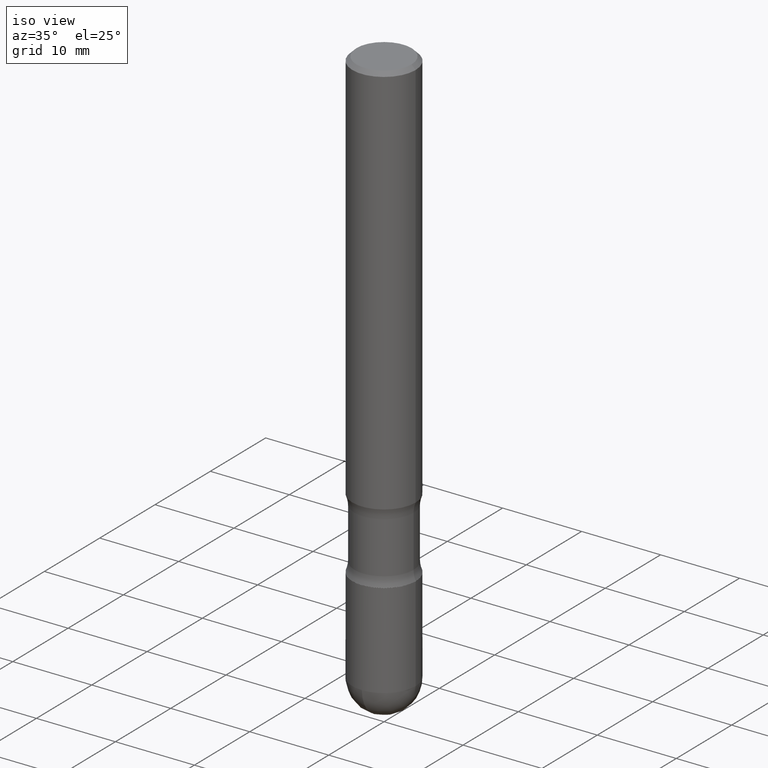
[diagram: clean part render]
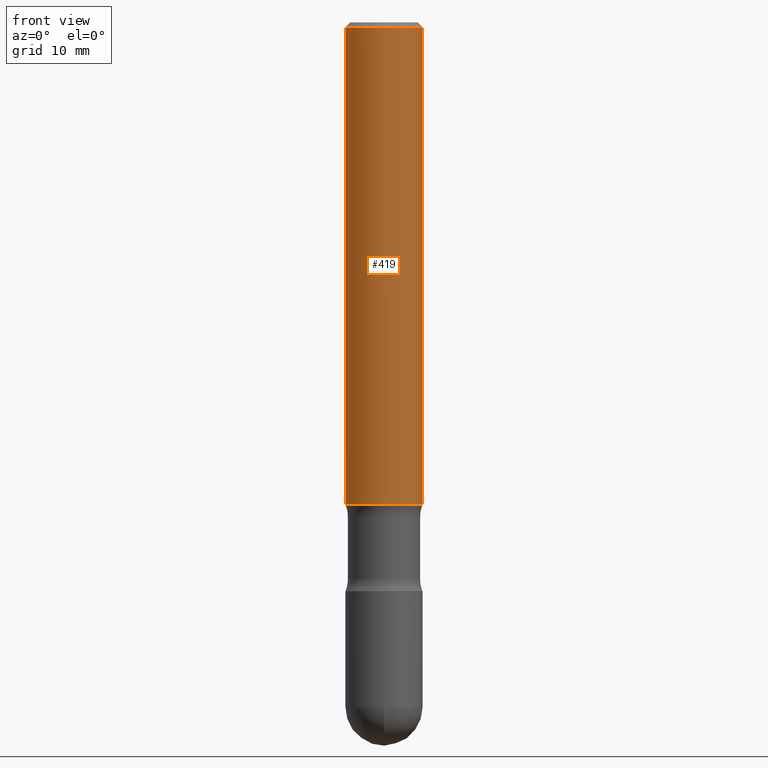
[diagram: tour spotlight — one face highlighted and labeled with its STEP entity id]
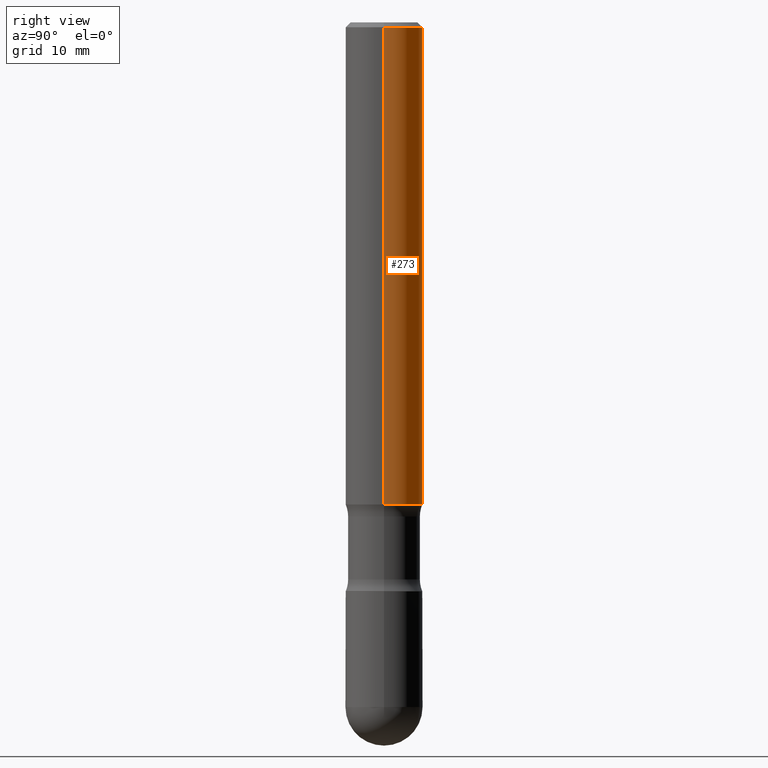
[diagram: tour spotlight — one face highlighted and labeled with its STEP entity id]
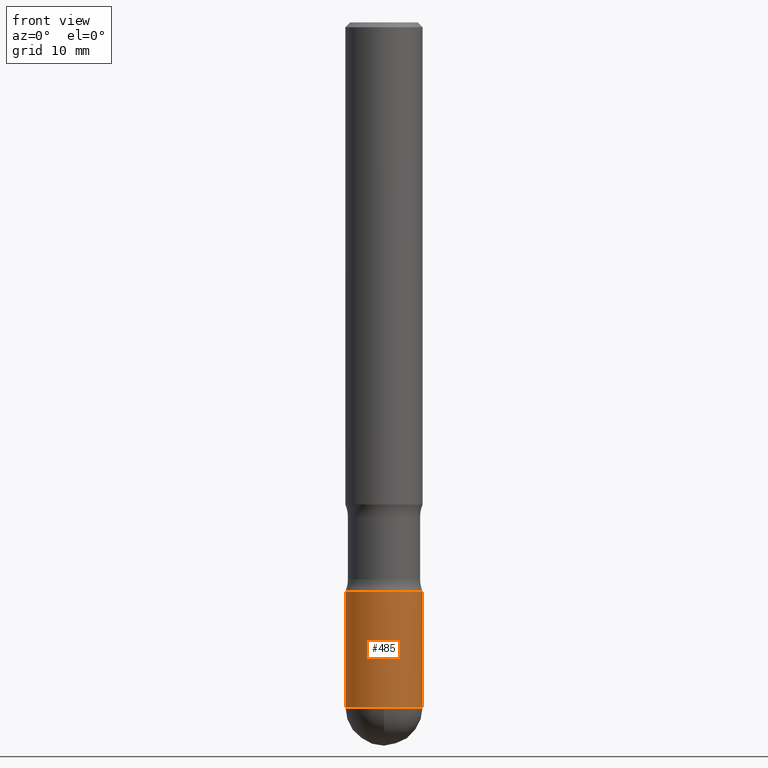
[diagram: tour spotlight — one face highlighted and labeled with its STEP entity id]
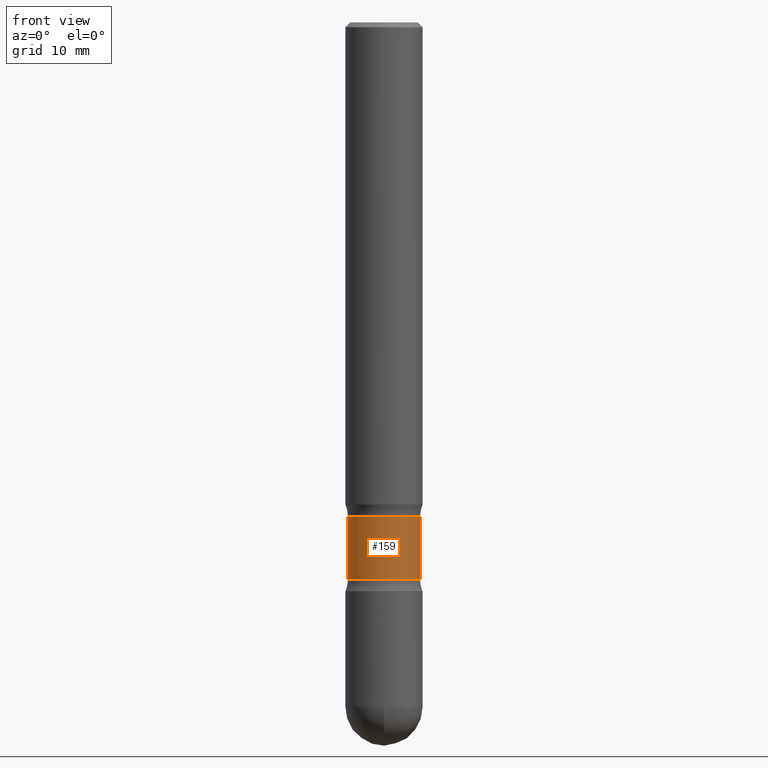
[diagram: tour spotlight — one face highlighted and labeled with its STEP entity id]
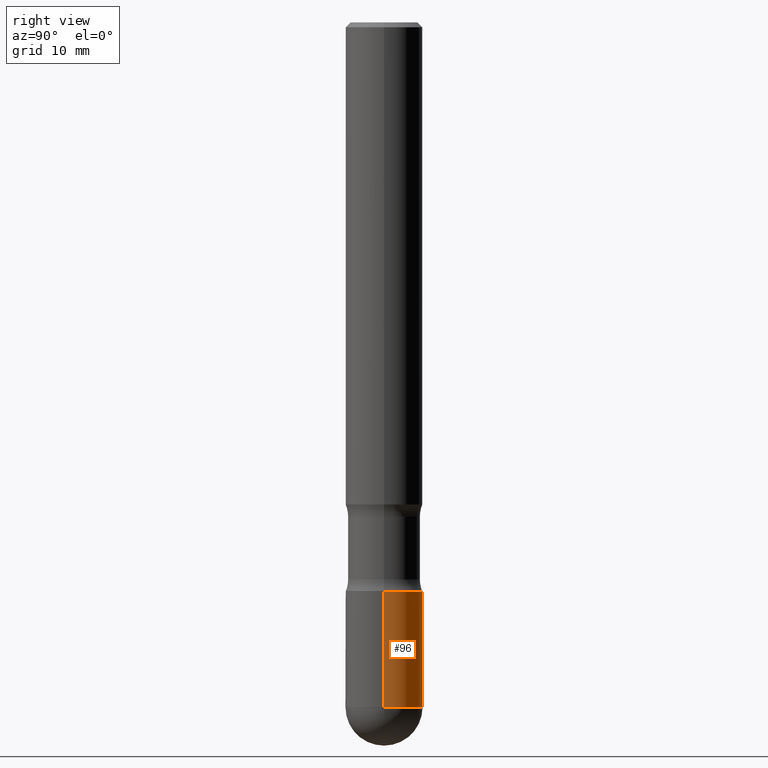
[diagram: tour spotlight — one face highlighted and labeled with its STEP entity id]
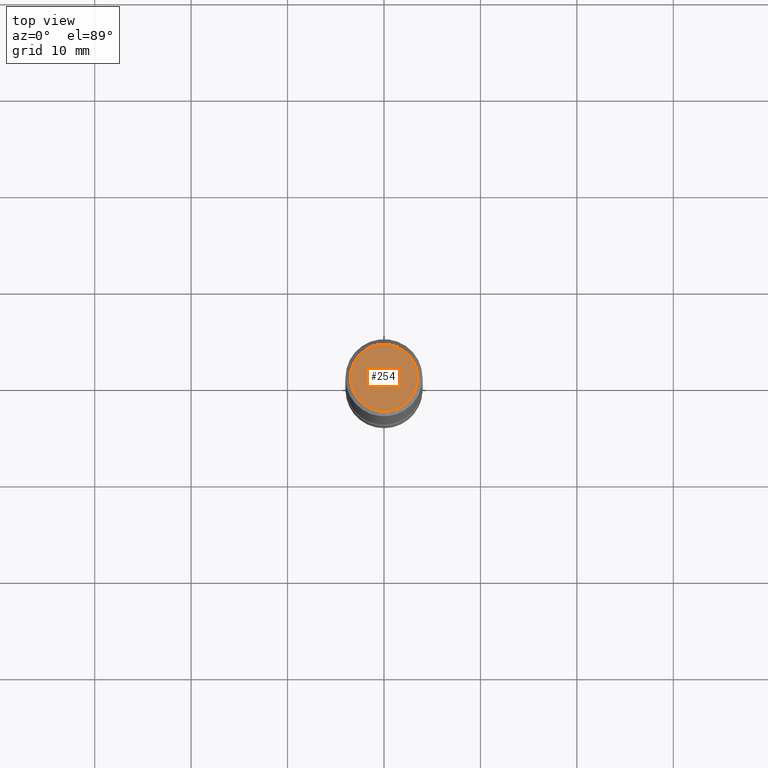
[diagram: tour spotlight — one face highlighted and labeled with its STEP entity id]
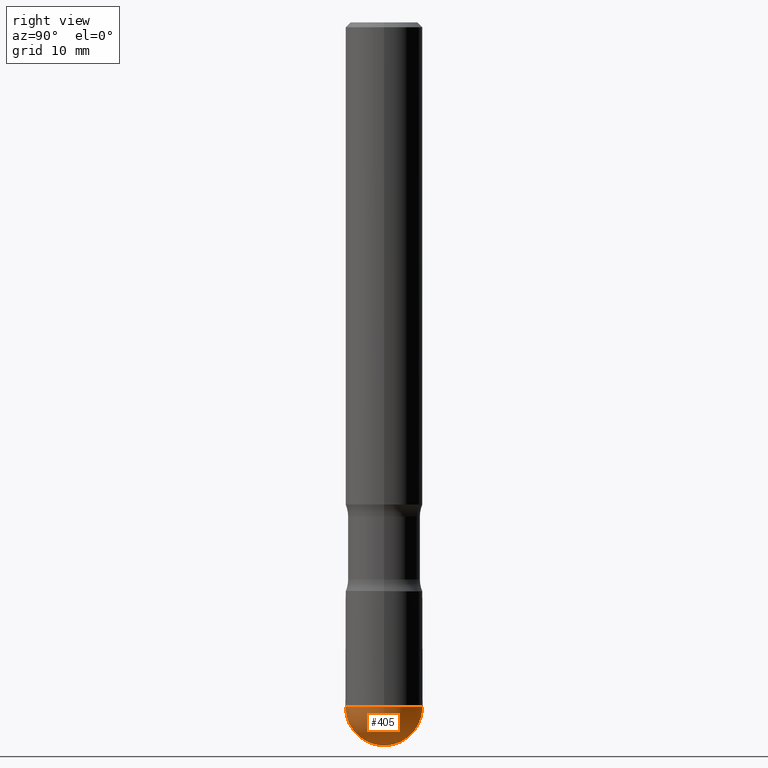
[diagram: tour spotlight — one face highlighted and labeled with its STEP entity id]
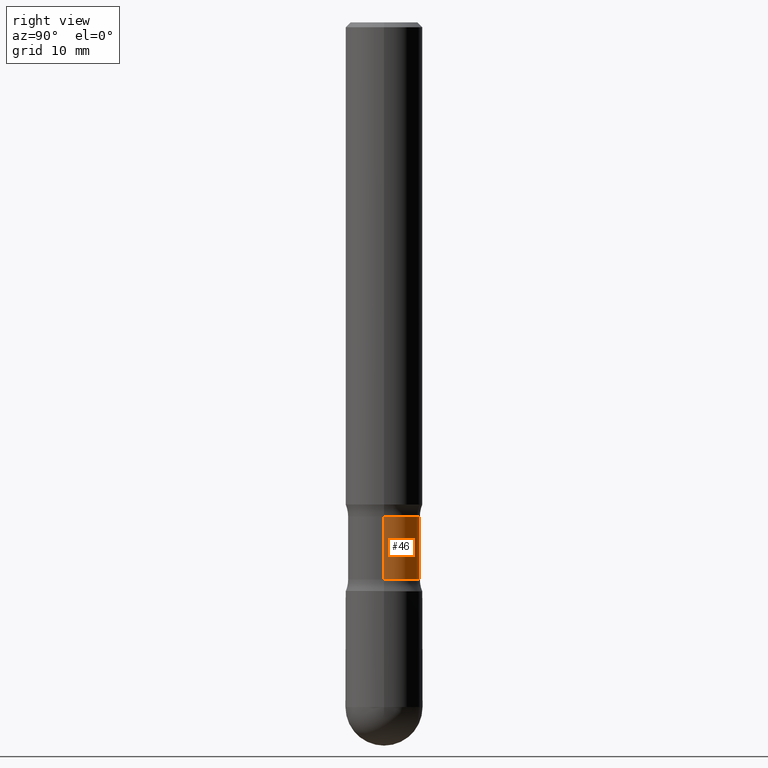
[diagram: tour spotlight — one face highlighted and labeled with its STEP entity id]
A machine part: a face-by-face anatomy tour. The part has 19 B-rep faces; the first image is the clean iso view, then the 8 largest visible faces are spotlighted one at a time (largest first), each with its STEP entity span.

Face 1 — front view, entity #419. In plain terms, the highlighted cylindrical surface (partial cylindrical patch) has radius 4.0005 mm, axis along (0, -0, -1).
Definition (entity closure, byte-faithful):
#29 = CYLINDRICAL_SURFACE ( 'NONE', #199, 0.1574999999999998623 ) ;
#30 = CARTESIAN_POINT ( 'NONE',  ( -0.1574999999999998623, -7.010545380263155655E-15, -2.322899999999999743 ) ) ;
#35 = ORIENTED_EDGE ( 'NONE', *, *, #527, .F. ) ;
#66 = EDGE_CURVE ( 'NONE', #160, #397, #324, .T. ) ;
#86 = CARTESIAN_POINT ( 'NONE',  ( 4.813905344975444077E-29, -6.872981015512735652E-15, -1.968500000000001249 ) ) ;
#91 = DIRECTION ( 'NONE',  ( -1.000000000000000000, 6.982962677686266711E-15, 0.000000000000000000 ) ) ;
#93 = EDGE_CURVE ( 'NONE', #435, #145, #252, .T. ) ;
#145 = VERTEX_POINT ( 'NONE', #450 ) ;
#160 = VERTEX_POINT ( 'NONE', #491 ) ;
#167 = CARTESIAN_POINT ( 'NONE',  ( -0.1574999999999999456, -5.773164393777148960E-15, -1.968500000000001249 ) ) ;
#199 = AXIS2_PLACEMENT_3D ( 'NONE', #432, #349, #477 ) ;
#223 = VECTOR ( 'NONE', #307, 39.37007874015748143 ) ;
#225 = DIRECTION ( 'NONE',  ( 2.445468806185136597E-29, -3.491481338843145583E-15, -1.000000000000000000 ) ) ;
#248 = FACE_OUTER_BOUND ( 'NONE', #304, .T. ) ;
#252 = CIRCLE ( 'NONE', #475, 0.1574999999999997513 ) ;
#304 = EDGE_LOOP ( 'NONE', ( #35, #359, #497, #401 ) ) ;
#307 = DIRECTION ( 'NONE',  ( 2.445468806185136877E-29, -3.491481338843145188E-15, -1.000000000000000000 ) ) ;
#324 = CIRCLE ( 'NONE', #541, 0.1574999999999999456 ) ;
#349 = DIRECTION ( 'NONE',  ( 2.445468806185136597E-29, -3.491481338843145583E-15, -1.000000000000000000 ) ) ;
#351 = VECTOR ( 'NONE', #514, 39.37007874015748143 ) ;
#356 = LINE ( 'NONE', #448, #223 ) ;
#358 = DIRECTION ( 'NONE',  ( 2.445468806185136597E-29, -3.491481338843145583E-15, -1.000000000000000000 ) ) ;
#359 = ORIENTED_EDGE ( 'NONE', *, *, #93, .T. ) ;
#387 = EDGE_CURVE ( 'NONE', #145, #397, #427, .T. ) ;
#397 = VERTEX_POINT ( 'NONE', #167 ) ;
#401 = ORIENTED_EDGE ( 'NONE', *, *, #66, .F. ) ;
#419 = ADVANCED_FACE ( 'NONE', ( #248 ), #29, .T. ) ;
#427 = LINE ( 'NONE', #30, #351 ) ;
#432 = CARTESIAN_POINT ( 'NONE',  ( 5.680579489887452821E-29, -8.110362001998742346E-15, -2.322899999999999743 ) ) ;
#435 = VERTEX_POINT ( 'NONE', #554 ) ;
#448 = CARTESIAN_POINT ( 'NONE',  ( 0.1574999999999998623, -9.190890436647758125E-15, -2.322899999999999743 ) ) ;
#450 = CARTESIAN_POINT ( 'NONE',  ( -0.1574999999999997513, 1.029986994958722210E-15, -0.02000000000000005940 ) ) ;
#475 = AXIS2_PLACEMENT_3D ( 'NONE', #487, #358, #91 ) ;
#477 = DIRECTION ( 'NONE',  ( -1.000000000000000000, 6.982962677686268288E-15, 0.000000000000000000 ) ) ;
#487 = CARTESIAN_POINT ( 'NONE',  ( 4.890937612370288047E-31, -6.982962677686311331E-17, -0.02000000000000005940 ) ) ;
#491 = CARTESIAN_POINT ( 'NONE',  ( 0.1574999999999999456, -4.551933755793814071E-15, -1.968500000000001249 ) ) ;
#493 = DIRECTION ( 'NONE',  ( -1.000000000000000000, 6.982962677686270655E-15, 0.000000000000000000 ) ) ;
#497 = ORIENTED_EDGE ( 'NONE', *, *, #387, .T. ) ;
#514 = DIRECTION ( 'NONE',  ( 2.445468806185136877E-29, -3.491481338843145188E-15, -1.000000000000000000 ) ) ;
#527 = EDGE_CURVE ( 'NONE', #435, #160, #356, .T. ) ;
#541 = AXIS2_PLACEMENT_3D ( 'NONE', #86, #225, #493 ) ;
#554 = CARTESIAN_POINT ( 'NONE',  ( 0.1574999999999997513, -1.150358061425877697E-15, -0.02000000000000005940 ) ) ;

Face 2 — right view, entity #273. In plain terms, the highlighted cylindrical surface (partial cylindrical patch) has radius 4.0005 mm, axis along (0, -0, -1).
Definition (entity closure, byte-faithful):
#6 = AXIS2_PLACEMENT_3D ( 'NONE', #65, #548, #465 ) ;
#9 = DIRECTION ( 'NONE',  ( 2.445468806185136597E-29, -3.491481338843145583E-15, -1.000000000000000000 ) ) ;
#30 = CARTESIAN_POINT ( 'NONE',  ( -0.1574999999999998623, -7.010545380263155655E-15, -2.322899999999999743 ) ) ;
#55 = FACE_OUTER_BOUND ( 'NONE', #459, .T. ) ;
#65 = CARTESIAN_POINT ( 'NONE',  ( 5.680579489887452821E-29, -8.110362001998742346E-15, -2.322899999999999743 ) ) ;
#112 = CIRCLE ( 'NONE', #126, 0.1574999999999997513 ) ;
#126 = AXIS2_PLACEMENT_3D ( 'NONE', #562, #516, #384 ) ;
#131 = EDGE_CURVE ( 'NONE', #397, #160, #486, .T. ) ;
#143 = ORIENTED_EDGE ( 'NONE', *, *, #527, .T. ) ;
#145 = VERTEX_POINT ( 'NONE', #450 ) ;
#160 = VERTEX_POINT ( 'NONE', #491 ) ;
#167 = CARTESIAN_POINT ( 'NONE',  ( -0.1574999999999999456, -5.773164393777148960E-15, -1.968500000000001249 ) ) ;
#223 = VECTOR ( 'NONE', #307, 39.37007874015748143 ) ;
#244 = ORIENTED_EDGE ( 'NONE', *, *, #400, .T. ) ;
#263 = ORIENTED_EDGE ( 'NONE', *, *, #387, .F. ) ;
#273 = ADVANCED_FACE ( 'NONE', ( #55 ), #415, .T. ) ;
#307 = DIRECTION ( 'NONE',  ( 2.445468806185136877E-29, -3.491481338843145188E-15, -1.000000000000000000 ) ) ;
#351 = VECTOR ( 'NONE', #514, 39.37007874015748143 ) ;
#356 = LINE ( 'NONE', #448, #223 ) ;
#384 = DIRECTION ( 'NONE',  ( -1.000000000000000000, 6.982962677686266711E-15, 0.000000000000000000 ) ) ;
#387 = EDGE_CURVE ( 'NONE', #145, #397, #427, .T. ) ;
#396 = CARTESIAN_POINT ( 'NONE',  ( 4.813905344975444077E-29, -6.872981015512735652E-15, -1.968500000000001249 ) ) ;
#397 = VERTEX_POINT ( 'NONE', #167 ) ;
#400 = EDGE_CURVE ( 'NONE', #145, #435, #112, .T. ) ;
#415 = CYLINDRICAL_SURFACE ( 'NONE', #6, 0.1574999999999998623 ) ;
#416 = ORIENTED_EDGE ( 'NONE', *, *, #131, .F. ) ;
#427 = LINE ( 'NONE', #30, #351 ) ;
#435 = VERTEX_POINT ( 'NONE', #554 ) ;
#448 = CARTESIAN_POINT ( 'NONE',  ( 0.1574999999999998623, -9.190890436647758125E-15, -2.322899999999999743 ) ) ;
#450 = CARTESIAN_POINT ( 'NONE',  ( -0.1574999999999997513, 1.029986994958722210E-15, -0.02000000000000005940 ) ) ;
#459 = EDGE_LOOP ( 'NONE', ( #244, #143, #416, #263 ) ) ;
#461 = AXIS2_PLACEMENT_3D ( 'NONE', #396, #9, #528 ) ;
#465 = DIRECTION ( 'NONE',  ( -1.000000000000000000, 6.982962677686268288E-15, 0.000000000000000000 ) ) ;
#486 = CIRCLE ( 'NONE', #461, 0.1574999999999999456 ) ;
#491 = CARTESIAN_POINT ( 'NONE',  ( 0.1574999999999999456, -4.551933755793814071E-15, -1.968500000000001249 ) ) ;
#514 = DIRECTION ( 'NONE',  ( 2.445468806185136877E-29, -3.491481338843145188E-15, -1.000000000000000000 ) ) ;
#516 = DIRECTION ( 'NONE',  ( 2.445468806185136597E-29, -3.491481338843145583E-15, -1.000000000000000000 ) ) ;
#527 = EDGE_CURVE ( 'NONE', #435, #160, #356, .T. ) ;
#528 = DIRECTION ( 'NONE',  ( -1.000000000000000000, 6.982962677686270655E-15, 0.000000000000000000 ) ) ;
#548 = DIRECTION ( 'NONE',  ( 2.445468806185136597E-29, -3.491481338843145583E-15, -1.000000000000000000 ) ) ;
#554 = CARTESIAN_POINT ( 'NONE',  ( 0.1574999999999997513, -1.150358061425877697E-15, -0.02000000000000005940 ) ) ;
#562 = CARTESIAN_POINT ( 'NONE',  ( 4.890937612370288047E-31, -6.982962677686311331E-17, -0.02000000000000005940 ) ) ;

Face 3 — front view, entity #485. In plain terms, the highlighted cylindrical surface (partial cylindrical patch) has radius 4.0005 mm, axis along (-0, 0, 1).
Definition (entity closure, byte-faithful):
#33 = CARTESIAN_POINT ( 'NONE',  ( 6.835818953929311707E-29, -9.759737786468243605E-15, -2.795299999999999674 ) ) ;
#59 = CARTESIAN_POINT ( 'NONE',  ( -0.1574999999999994738, -7.815945085411339316E-15, -2.795299999999999674 ) ) ;
#62 = CARTESIAN_POINT ( 'NONE',  ( 5.680579489887452821E-29, -8.110362001998742346E-15, -2.322899999999999743 ) ) ;
#76 = CYLINDRICAL_SURFACE ( 'NONE', #326, 0.1574999999999995015 ) ;
#99 = VECTOR ( 'NONE', #513, 39.37007874015748143 ) ;
#103 = ORIENTED_EDGE ( 'NONE', *, *, #449, .T. ) ;
#106 = VERTEX_POINT ( 'NONE', #138 ) ;
#113 = LINE ( 'NONE', #283, #180 ) ;
#120 = CIRCLE ( 'NONE', #423, 0.1574999999999994738 ) ;
#122 = CARTESIAN_POINT ( 'NONE',  ( 0.000000000000000000, 0.000000000000000000, 0.000000000000000000 ) ) ;
#138 = CARTESIAN_POINT ( 'NONE',  ( -0.1574999999999995570, -7.815945085411339316E-15, -2.322899999999999743 ) ) ;
#147 = DIRECTION ( 'NONE',  ( 1.000000000000000000, -6.982962677686269077E-15, 0.000000000000000000 ) ) ;
#148 = VERTEX_POINT ( 'NONE', #322 ) ;
#180 = VECTOR ( 'NONE', #377, 39.37007874015748143 ) ;
#183 = EDGE_CURVE ( 'NONE', #148, #455, #258, .T. ) ;
#192 = VERTEX_POINT ( 'NONE', #59 ) ;
#196 = LINE ( 'NONE', #457, #99 ) ;
#204 = DIRECTION ( 'NONE',  ( -2.445468806185136597E-29, 3.491481338843145583E-15, 1.000000000000000000 ) ) ;
#231 = DIRECTION ( 'NONE',  ( -2.445468806185136597E-29, 3.491481338843145583E-15, 1.000000000000000000 ) ) ;
#249 = EDGE_CURVE ( 'NONE', #106, #537, #344, .T. ) ;
#251 = DIRECTION ( 'NONE',  ( -2.445468806185136597E-29, 3.491481338843145583E-15, 1.000000000000000000 ) ) ;
#255 = FACE_OUTER_BOUND ( 'NONE', #506, .T. ) ;
#258 = CIRCLE ( 'NONE', #523, 0.1574999999999994738 ) ;
#269 = EDGE_CURVE ( 'NONE', #455, #537, #113, .T. ) ;
#282 = EDGE_CURVE ( 'NONE', #192, #106, #196, .T. ) ;
#283 = CARTESIAN_POINT ( 'NONE',  ( 0.1574999999999995015, -1.099816621735583536E-15, 7.679978421878574211E-30 ) ) ;
#284 = ORIENTED_EDGE ( 'NONE', *, *, #269, .T. ) ;
#322 = CARTESIAN_POINT ( 'NONE',  ( -1.119104808822089564E-15, -0.1575000000000098266, -2.795299999999998786 ) ) ;
#326 = AXIS2_PLACEMENT_3D ( 'NONE', #122, #251, #389 ) ;
#334 = CARTESIAN_POINT ( 'NONE',  ( 6.835818953929311707E-29, -9.759737786468243605E-15, -2.795299999999999674 ) ) ;
#344 = CIRCLE ( 'NONE', #412, 0.1574999999999995570 ) ;
#347 = ORIENTED_EDGE ( 'NONE', *, *, #282, .F. ) ;
#348 = CARTESIAN_POINT ( 'NONE',  ( 0.1574999999999994738, -1.003486651596907730E-14, -2.795299999999999674 ) ) ;
#350 = DIRECTION ( 'NONE',  ( 1.000000000000000000, -6.982962677686260400E-15, 0.000000000000000000 ) ) ;
#377 = DIRECTION ( 'NONE',  ( -2.445468806185136877E-29, 3.491481338843145188E-15, 1.000000000000000000 ) ) ;
#389 = DIRECTION ( 'NONE',  ( 1.000000000000000000, -6.982962677686266711E-15, 4.876176775795935793E-29 ) ) ;
#391 = CARTESIAN_POINT ( 'NONE',  ( 0.1574999999999995570, -9.210178623734325882E-15, -2.322899999999999743 ) ) ;
#412 = AXIS2_PLACEMENT_3D ( 'NONE', #62, #231, #147 ) ;
#420 = DIRECTION ( 'NONE',  ( 1.000000000000000000, -6.982962677686260400E-15, 0.000000000000000000 ) ) ;
#423 = AXIS2_PLACEMENT_3D ( 'NONE', #33, #204, #350 ) ;
#429 = ORIENTED_EDGE ( 'NONE', *, *, #249, .F. ) ;
#449 = EDGE_CURVE ( 'NONE', #192, #148, #120, .T. ) ;
#455 = VERTEX_POINT ( 'NONE', #348 ) ;
#457 = CARTESIAN_POINT ( 'NONE',  ( -0.1574999999999995015, 1.119104808822154251E-15, -7.747322767151453163E-30 ) ) ;
#485 = ADVANCED_FACE ( 'NONE', ( #255 ), #76, .T. ) ;
#505 = DIRECTION ( 'NONE',  ( -2.445468806185136597E-29, 3.491481338843145583E-15, 1.000000000000000000 ) ) ;
#506 = EDGE_LOOP ( 'NONE', ( #347, #103, #560, #284, #429 ) ) ;
#513 = DIRECTION ( 'NONE',  ( -2.445468806185136877E-29, 3.491481338843145188E-15, 1.000000000000000000 ) ) ;
#523 = AXIS2_PLACEMENT_3D ( 'NONE', #334, #505, #420 ) ;
#537 = VERTEX_POINT ( 'NONE', #391 ) ;
#560 = ORIENTED_EDGE ( 'NONE', *, *, #183, .T. ) ;

Face 4 — front view, entity #159. In plain terms, the highlighted cylindrical surface (edge-blend (fillet) strip) has radius 3.7465 mm, axis along (0, -0, -1).
Definition (entity closure, byte-faithful):
#4 = FACE_OUTER_BOUND ( 'NONE', #107, .T. ) ;
#19 = EDGE_CURVE ( 'NONE', #279, #371, #563, .T. ) ;
#21 = ORIENTED_EDGE ( 'NONE', *, *, #433, .T. ) ;
#32 = CIRCLE ( 'NONE', #163, 0.1474999999999995759 ) ;
#44 = DIRECTION ( 'NONE',  ( 2.445468806185136877E-29, -3.491481338843145188E-15, -1.000000000000000000 ) ) ;
#64 = EDGE_CURVE ( 'NONE', #288, #279, #447, .T. ) ;
#75 = DIRECTION ( 'NONE',  ( 2.445468806185136877E-29, -3.491481338843145188E-15, -1.000000000000000000 ) ) ;
#78 = DIRECTION ( 'NONE',  ( -1.000000000000000000, 6.982962677686268288E-15, 0.000000000000000000 ) ) ;
#80 = ORIENTED_EDGE ( 'NONE', *, *, #256, .T. ) ;
#107 = EDGE_LOOP ( 'NONE', ( #534, #80, #21, #325 ) ) ;
#111 = AXIS2_PLACEMENT_3D ( 'NONE', #394, #353, #315 ) ;
#121 = CARTESIAN_POINT ( 'NONE',  ( -0.1474999999999996314, -7.080375007040019742E-15, -2.322899999999999743 ) ) ;
#128 = CYLINDRICAL_SURFACE ( 'NONE', #111, 0.1474999999999996314 ) ;
#149 = CARTESIAN_POINT ( 'NONE',  ( 0.1474999999999996592, -8.503594963427033925E-15, -2.273910205144336061 ) ) ;
#151 = VECTOR ( 'NONE', #44, 39.37007874015748143 ) ;
#159 = ADVANCED_FACE ( 'NONE', ( #4 ), #128, .T. ) ;
#163 = AXIS2_PLACEMENT_3D ( 'NONE', #373, #542, #280 ) ;
#200 = CARTESIAN_POINT ( 'NONE',  ( -0.1474999999999995759, -6.014040975086312449E-15, -2.017489794855663376 ) ) ;
#217 = CARTESIAN_POINT ( 'NONE',  ( 5.560776474746518841E-29, -7.939315047466438211E-15, -2.273910205144336061 ) ) ;
#227 = CARTESIAN_POINT ( 'NONE',  ( -0.1474999999999996314, -6.909328052507716396E-15, -2.273910205144336061 ) ) ;
#237 = VERTEX_POINT ( 'NONE', #200 ) ;
#256 = EDGE_CURVE ( 'NONE', #288, #237, #32, .T. ) ;
#279 = VERTEX_POINT ( 'NONE', #149 ) ;
#280 = DIRECTION ( 'NONE',  ( -1.000000000000000000, 6.982962677686270655E-15, 0.000000000000000000 ) ) ;
#288 = VERTEX_POINT ( 'NONE', #553 ) ;
#300 = DIRECTION ( 'NONE',  ( 2.445468806185136597E-29, -3.491481338843145583E-15, -1.000000000000000000 ) ) ;
#315 = DIRECTION ( 'NONE',  ( -1.000000000000000000, 6.982962677686268288E-15, 0.000000000000000000 ) ) ;
#325 = ORIENTED_EDGE ( 'NONE', *, *, #19, .F. ) ;
#353 = DIRECTION ( 'NONE',  ( 2.445468806185136597E-29, -3.491481338843145583E-15, -1.000000000000000000 ) ) ;
#371 = VERTEX_POINT ( 'NONE', #227 ) ;
#373 = CARTESIAN_POINT ( 'NONE',  ( 4.933708360116374694E-29, -7.044027970045034264E-15, -2.017489794855663376 ) ) ;
#394 = CARTESIAN_POINT ( 'NONE',  ( 5.680579489887452821E-29, -8.110362001998742346E-15, -2.322899999999999743 ) ) ;
#428 = AXIS2_PLACEMENT_3D ( 'NONE', #217, #300, #78 ) ;
#433 = EDGE_CURVE ( 'NONE', #237, #371, #468, .T. ) ;
#447 = LINE ( 'NONE', #538, #151 ) ;
#452 = VECTOR ( 'NONE', #75, 39.37007874015748143 ) ;
#468 = LINE ( 'NONE', #121, #452 ) ;
#534 = ORIENTED_EDGE ( 'NONE', *, *, #64, .F. ) ;
#538 = CARTESIAN_POINT ( 'NONE',  ( 0.1474999999999996314, -9.122285456670040033E-15, -2.322899999999999743 ) ) ;
#542 = DIRECTION ( 'NONE',  ( 2.445468806185136597E-29, -3.491481338843145583E-15, -1.000000000000000000 ) ) ;
#553 = CARTESIAN_POINT ( 'NONE',  ( 0.1474999999999995759, -8.004730437439041297E-15, -2.017489794855663376 ) ) ;
#563 = CIRCLE ( 'NONE', #428, 0.1474999999999996314 ) ;

Face 5 — right view, entity #96. In plain terms, the highlighted cylindrical surface (partial cylindrical patch) has radius 4.0005 mm, axis along (-0, 0, 1).
Definition (entity closure, byte-faithful):
#2 = DIRECTION ( 'NONE',  ( -2.445468806185136597E-29, 3.491481338843145583E-15, 1.000000000000000000 ) ) ;
#17 = AXIS2_PLACEMENT_3D ( 'NONE', #526, #127, #490 ) ;
#23 = DIRECTION ( 'NONE',  ( -2.445468806185136597E-29, 3.491481338843145583E-15, 1.000000000000000000 ) ) ;
#59 = CARTESIAN_POINT ( 'NONE',  ( -0.1574999999999994738, -7.815945085411339316E-15, -2.795299999999999674 ) ) ;
#61 = ORIENTED_EDGE ( 'NONE', *, *, #524, .T. ) ;
#85 = CARTESIAN_POINT ( 'NONE',  ( 6.835818953929311707E-29, -9.759737786468243605E-15, -2.795299999999999674 ) ) ;
#88 = AXIS2_PLACEMENT_3D ( 'NONE', #533, #2, #212 ) ;
#96 = ADVANCED_FACE ( 'NONE', ( #277 ), #172, .T. ) ;
#99 = VECTOR ( 'NONE', #513, 39.37007874015748143 ) ;
#106 = VERTEX_POINT ( 'NONE', #138 ) ;
#113 = LINE ( 'NONE', #283, #180 ) ;
#127 = DIRECTION ( 'NONE',  ( -2.445468806185136597E-29, 3.491481338843145583E-15, 1.000000000000000000 ) ) ;
#138 = CARTESIAN_POINT ( 'NONE',  ( -0.1574999999999995570, -7.815945085411339316E-15, -2.322899999999999743 ) ) ;
#172 = CYLINDRICAL_SURFACE ( 'NONE', #88, 0.1574999999999995015 ) ;
#180 = VECTOR ( 'NONE', #377, 39.37007874015748143 ) ;
#189 = AXIS2_PLACEMENT_3D ( 'NONE', #463, #23, #194 ) ;
#192 = VERTEX_POINT ( 'NONE', #59 ) ;
#194 = DIRECTION ( 'NONE',  ( 1.000000000000000000, -6.982962677686269077E-15, 0.000000000000000000 ) ) ;
#196 = LINE ( 'NONE', #457, #99 ) ;
#208 = DIRECTION ( 'NONE',  ( 1.000000000000000000, -6.982962677686260400E-15, 0.000000000000000000 ) ) ;
#212 = DIRECTION ( 'NONE',  ( 1.000000000000000000, -6.982962677686266711E-15, 4.876176775795935793E-29 ) ) ;
#239 = EDGE_CURVE ( 'NONE', #537, #106, #470, .T. ) ;
#264 = ORIENTED_EDGE ( 'NONE', *, *, #269, .F. ) ;
#269 = EDGE_CURVE ( 'NONE', #455, #537, #113, .T. ) ;
#277 = FACE_OUTER_BOUND ( 'NONE', #458, .T. ) ;
#282 = EDGE_CURVE ( 'NONE', #192, #106, #196, .T. ) ;
#283 = CARTESIAN_POINT ( 'NONE',  ( 0.1574999999999995015, -1.099816621735583536E-15, 7.679978421878574211E-30 ) ) ;
#312 = AXIS2_PLACEMENT_3D ( 'NONE', #85, #532, #208 ) ;
#318 = CARTESIAN_POINT ( 'NONE',  ( 1.099816621735655717E-15, 0.1574999999999902867, -2.795300000000000118 ) ) ;
#339 = CIRCLE ( 'NONE', #17, 0.1574999999999994738 ) ;
#348 = CARTESIAN_POINT ( 'NONE',  ( 0.1574999999999994738, -1.003486651596907730E-14, -2.795299999999999674 ) ) ;
#365 = ORIENTED_EDGE ( 'NONE', *, *, #239, .F. ) ;
#377 = DIRECTION ( 'NONE',  ( -2.445468806185136877E-29, 3.491481338843145188E-15, 1.000000000000000000 ) ) ;
#382 = ORIENTED_EDGE ( 'NONE', *, *, #282, .T. ) ;
#391 = CARTESIAN_POINT ( 'NONE',  ( 0.1574999999999995570, -9.210178623734325882E-15, -2.322899999999999743 ) ) ;
#440 = CIRCLE ( 'NONE', #312, 0.1574999999999994738 ) ;
#455 = VERTEX_POINT ( 'NONE', #348 ) ;
#457 = CARTESIAN_POINT ( 'NONE',  ( -0.1574999999999995015, 1.119104808822154251E-15, -7.747322767151453163E-30 ) ) ;
#458 = EDGE_LOOP ( 'NONE', ( #61, #382, #365, #264, #479 ) ) ;
#463 = CARTESIAN_POINT ( 'NONE',  ( 5.680579489887452821E-29, -8.110362001998742346E-15, -2.322899999999999743 ) ) ;
#470 = CIRCLE ( 'NONE', #189, 0.1574999999999995570 ) ;
#479 = ORIENTED_EDGE ( 'NONE', *, *, #535, .T. ) ;
#490 = DIRECTION ( 'NONE',  ( 1.000000000000000000, -6.982962677686260400E-15, 0.000000000000000000 ) ) ;
#513 = DIRECTION ( 'NONE',  ( -2.445468806185136877E-29, 3.491481338843145188E-15, 1.000000000000000000 ) ) ;
#517 = VERTEX_POINT ( 'NONE', #318 ) ;
#524 = EDGE_CURVE ( 'NONE', #517, #192, #339, .T. ) ;
#526 = CARTESIAN_POINT ( 'NONE',  ( 6.835818953929311707E-29, -9.759737786468243605E-15, -2.795299999999999674 ) ) ;
#532 = DIRECTION ( 'NONE',  ( -2.445468806185136597E-29, 3.491481338843145583E-15, 1.000000000000000000 ) ) ;
#533 = CARTESIAN_POINT ( 'NONE',  ( 0.000000000000000000, 0.000000000000000000, 0.000000000000000000 ) ) ;
#535 = EDGE_CURVE ( 'NONE', #455, #517, #440, .T. ) ;
#537 = VERTEX_POINT ( 'NONE', #391 ) ;

Face 6 — top view, entity #254. In plain terms, the highlighted planar face has unit normal (-0, 0, 1).
Definition (entity closure, byte-faithful):
#18 = CARTESIAN_POINT ( 'NONE',  ( 9.601573681818597005E-16, 0.1374999999999997335, -4.779444278458813133E-16 ) ) ;
#43 = DIRECTION ( 'NONE',  ( -1.000000000000000000, 6.982962677686265922E-15, -4.876176775795935793E-29 ) ) ;
#53 = CIRCLE ( 'NONE', #360, 0.1374999999999997335 ) ;
#82 = AXIS2_PLACEMENT_3D ( 'NONE', #132, #95, #43 ) ;
#95 = DIRECTION ( 'NONE',  ( 2.445468806185136597E-29, -3.491481338843145583E-15, -1.000000000000000000 ) ) ;
#132 = CARTESIAN_POINT ( 'NONE',  ( 0.000000000000000000, 0.000000000000000000, 0.000000000000000000 ) ) ;
#134 = EDGE_LOOP ( 'NONE', ( #408, #213 ) ) ;
#137 = VERTEX_POINT ( 'NONE', #259 ) ;
#140 = VERTEX_POINT ( 'NONE', #444 ) ;
#191 = DIRECTION ( 'NONE',  ( -2.438088387897960049E-29, 3.491481338843145188E-15, 1.000000000000000000 ) ) ;
#201 = DIRECTION ( 'NONE',  ( -1.000000000000000000, 6.982962677686265922E-15, -4.876176775795935793E-29 ) ) ;
#205 = DIRECTION ( 'NONE',  ( 2.445468806185136597E-29, -3.491481338843145583E-15, -1.000000000000000000 ) ) ;
#213 = ORIENTED_EDGE ( 'NONE', *, *, #547, .F. ) ;
#232 = AXIS2_PLACEMENT_3D ( 'NONE', #18, #191, #367 ) ;
#254 = ADVANCED_FACE ( 'NONE', ( #411 ), #376, .T. ) ;
#259 = CARTESIAN_POINT ( 'NONE',  ( 0.1374999999999997335, -1.046838268059730717E-15, 7.017535886221985357E-30 ) ) ;
#360 = AXIS2_PLACEMENT_3D ( 'NONE', #407, #205, #201 ) ;
#367 = DIRECTION ( 'NONE',  ( 1.000000000000000000, -6.982962677686265922E-15, 4.876176775795935793E-29 ) ) ;
#376 = PLANE ( 'NONE',  #232 ) ;
#378 = EDGE_CURVE ( 'NONE', #140, #137, #53, .T. ) ;
#407 = CARTESIAN_POINT ( 'NONE',  ( 0.000000000000000000, 0.000000000000000000, 0.000000000000000000 ) ) ;
#408 = ORIENTED_EDGE ( 'NONE', *, *, #378, .F. ) ;
#411 = FACE_OUTER_BOUND ( 'NONE', #134, .T. ) ;
#444 = CARTESIAN_POINT ( 'NONE',  ( -0.1374999999999997335, 9.601573681818597005E-16, -6.704743066719399103E-30 ) ) ;
#476 = CIRCLE ( 'NONE', #82, 0.1374999999999997335 ) ;
#547 = EDGE_CURVE ( 'NONE', #137, #140, #476, .T. ) ;

Face 7 — right view, entity #405. In plain terms, the highlighted spherical surface has radius 4.0005 mm.
Definition (entity closure, byte-faithful):
#20 = DIRECTION ( 'NONE',  ( 1.000000000000000000, -6.982962677686265922E-15, 4.883557194083112340E-29 ) ) ;
#79 = DIRECTION ( 'NONE',  ( -1.000000000000000000, 7.105427357601001070E-15, -4.926315508542082329E-29 ) ) ;
#83 = FACE_OUTER_BOUND ( 'NONE', #446, .T. ) ;
#85 = CARTESIAN_POINT ( 'NONE',  ( 6.835818953929311707E-29, -9.759737786468243605E-15, -2.795299999999999674 ) ) ;
#101 = ORIENTED_EDGE ( 'NONE', *, *, #535, .F. ) ;
#108 = ORIENTED_EDGE ( 'NONE', *, *, #183, .F. ) ;
#148 = VERTEX_POINT ( 'NONE', #322 ) ;
#157 = ORIENTED_EDGE ( 'NONE', *, *, #176, .T. ) ;
#158 = CARTESIAN_POINT ( 'NONE',  ( 6.822350084874735636E-29, -9.779025973554814517E-15, -2.795299999999999674 ) ) ;
#162 = DIRECTION ( 'NONE',  ( -7.105427357601000281E-15, -1.000000000000000000, 0.000000000000000000 ) ) ;
#176 = EDGE_CURVE ( 'NONE', #369, #517, #438, .T. ) ;
#183 = EDGE_CURVE ( 'NONE', #148, #455, #258, .T. ) ;
#198 = AXIS2_PLACEMENT_3D ( 'NONE', #460, #20, #511 ) ;
#208 = DIRECTION ( 'NONE',  ( 1.000000000000000000, -6.982962677686260400E-15, 0.000000000000000000 ) ) ;
#258 = CIRCLE ( 'NONE', #523, 0.1574999999999994738 ) ;
#295 = DIRECTION ( 'NONE',  ( -1.000000000000000000, 6.982962677686265922E-15, -4.883557194083112340E-29 ) ) ;
#312 = AXIS2_PLACEMENT_3D ( 'NONE', #85, #532, #208 ) ;
#318 = CARTESIAN_POINT ( 'NONE',  ( 1.099816621735655717E-15, 0.1574999999999902867, -2.795300000000000118 ) ) ;
#322 = CARTESIAN_POINT ( 'NONE',  ( -1.119104808822089564E-15, -0.1575000000000098266, -2.795299999999998786 ) ) ;
#334 = CARTESIAN_POINT ( 'NONE',  ( 6.835818953929311707E-29, -9.759737786468243605E-15, -2.795299999999999674 ) ) ;
#341 = CARTESIAN_POINT ( 'NONE',  ( 7.214245856376183829E-29, -1.031929019087932635E-14, -2.952800000000000313 ) ) ;
#348 = CARTESIAN_POINT ( 'NONE',  ( 0.1574999999999994738, -1.003486651596907730E-14, -2.795299999999999674 ) ) ;
#369 = VERTEX_POINT ( 'NONE', #341 ) ;
#380 = AXIS2_PLACEMENT_3D ( 'NONE', #158, #295, #390 ) ;
#390 = DIRECTION ( 'NONE',  ( 6.982962677686265922E-15, 1.000000000000000000, -3.469013325287939094E-15 ) ) ;
#405 = ADVANCED_FACE ( 'NONE', ( #83 ), #471, .T. ) ;
#420 = DIRECTION ( 'NONE',  ( 1.000000000000000000, -6.982962677686260400E-15, 0.000000000000000000 ) ) ;
#426 = CARTESIAN_POINT ( 'NONE',  ( 6.822350084874735636E-29, -9.779025973554814517E-15, -2.795299999999999674 ) ) ;
#431 = CIRCLE ( 'NONE', #515, 0.1575000000000006395 ) ;
#438 = CIRCLE ( 'NONE', #198, 0.1575000000000006395 ) ;
#440 = CIRCLE ( 'NONE', #312, 0.1574999999999994738 ) ;
#446 = EDGE_LOOP ( 'NONE', ( #484, #157, #101, #108 ) ) ;
#455 = VERTEX_POINT ( 'NONE', #348 ) ;
#460 = CARTESIAN_POINT ( 'NONE',  ( 6.822350084874735636E-29, -9.779025973554814517E-15, -2.795299999999999674 ) ) ;
#469 = EDGE_CURVE ( 'NONE', #369, #148, #431, .T. ) ;
#471 = SPHERICAL_SURFACE ( 'NONE', #380, 0.1575000000000006395 ) ;
#484 = ORIENTED_EDGE ( 'NONE', *, *, #469, .F. ) ;
#505 = DIRECTION ( 'NONE',  ( -2.445468806185136597E-29, 3.491481338843145583E-15, 1.000000000000000000 ) ) ;
#511 = DIRECTION ( 'NONE',  ( 6.982962677686266711E-15, 1.000000000000000000, 0.000000000000000000 ) ) ;
#515 = AXIS2_PLACEMENT_3D ( 'NONE', #426, #79, #162 ) ;
#517 = VERTEX_POINT ( 'NONE', #318 ) ;
#523 = AXIS2_PLACEMENT_3D ( 'NONE', #334, #505, #420 ) ;
#532 = DIRECTION ( 'NONE',  ( -2.445468806185136597E-29, 3.491481338843145583E-15, 1.000000000000000000 ) ) ;
#535 = EDGE_CURVE ( 'NONE', #455, #517, #440, .T. ) ;

Face 8 — right view, entity #46. In plain terms, the highlighted cylindrical surface (edge-blend (fillet) strip) has radius 3.7465 mm, axis along (0, -0, -1).
Definition (entity closure, byte-faithful):
#8 = AXIS2_PLACEMENT_3D ( 'NONE', #202, #520, #346 ) ;
#44 = DIRECTION ( 'NONE',  ( 2.445468806185136877E-29, -3.491481338843145188E-15, -1.000000000000000000 ) ) ;
#46 = ADVANCED_FACE ( 'NONE', ( #94 ), #441, .T. ) ;
#64 = EDGE_CURVE ( 'NONE', #288, #279, #447, .T. ) ;
#75 = DIRECTION ( 'NONE',  ( 2.445468806185136877E-29, -3.491481338843145188E-15, -1.000000000000000000 ) ) ;
#94 = FACE_OUTER_BOUND ( 'NONE', #323, .T. ) ;
#115 = DIRECTION ( 'NONE',  ( -1.000000000000000000, 6.982962677686268288E-15, 0.000000000000000000 ) ) ;
#116 = CARTESIAN_POINT ( 'NONE',  ( 5.560776474746518841E-29, -7.939315047466438211E-15, -2.273910205144336061 ) ) ;
#121 = CARTESIAN_POINT ( 'NONE',  ( -0.1474999999999996314, -7.080375007040019742E-15, -2.322899999999999743 ) ) ;
#136 = DIRECTION ( 'NONE',  ( 2.445468806185136597E-29, -3.491481338843145583E-15, -1.000000000000000000 ) ) ;
#149 = CARTESIAN_POINT ( 'NONE',  ( 0.1474999999999996592, -8.503594963427033925E-15, -2.273910205144336061 ) ) ;
#151 = VECTOR ( 'NONE', #44, 39.37007874015748143 ) ;
#153 = CIRCLE ( 'NONE', #8, 0.1474999999999995759 ) ;
#169 = CIRCLE ( 'NONE', #422, 0.1474999999999996314 ) ;
#200 = CARTESIAN_POINT ( 'NONE',  ( -0.1474999999999995759, -6.014040975086312449E-15, -2.017489794855663376 ) ) ;
#202 = CARTESIAN_POINT ( 'NONE',  ( 4.933708360116374694E-29, -7.044027970045034264E-15, -2.017489794855663376 ) ) ;
#227 = CARTESIAN_POINT ( 'NONE',  ( -0.1474999999999996314, -6.909328052507716396E-15, -2.273910205144336061 ) ) ;
#237 = VERTEX_POINT ( 'NONE', #200 ) ;
#265 = ORIENTED_EDGE ( 'NONE', *, *, #437, .T. ) ;
#279 = VERTEX_POINT ( 'NONE', #149 ) ;
#288 = VERTEX_POINT ( 'NONE', #553 ) ;
#296 = ORIENTED_EDGE ( 'NONE', *, *, #433, .F. ) ;
#299 = EDGE_CURVE ( 'NONE', #371, #279, #169, .T. ) ;
#323 = EDGE_LOOP ( 'NONE', ( #265, #501, #545, #296 ) ) ;
#336 = DIRECTION ( 'NONE',  ( 2.445468806185136597E-29, -3.491481338843145583E-15, -1.000000000000000000 ) ) ;
#346 = DIRECTION ( 'NONE',  ( -1.000000000000000000, 6.982962677686270655E-15, 0.000000000000000000 ) ) ;
#364 = DIRECTION ( 'NONE',  ( -1.000000000000000000, 6.982962677686268288E-15, 0.000000000000000000 ) ) ;
#371 = VERTEX_POINT ( 'NONE', #227 ) ;
#422 = AXIS2_PLACEMENT_3D ( 'NONE', #116, #336, #115 ) ;
#433 = EDGE_CURVE ( 'NONE', #237, #371, #468, .T. ) ;
#437 = EDGE_CURVE ( 'NONE', #237, #288, #153, .T. ) ;
#441 = CYLINDRICAL_SURFACE ( 'NONE', #564, 0.1474999999999996314 ) ;
#447 = LINE ( 'NONE', #538, #151 ) ;
#452 = VECTOR ( 'NONE', #75, 39.37007874015748143 ) ;
#468 = LINE ( 'NONE', #121, #452 ) ;
#501 = ORIENTED_EDGE ( 'NONE', *, *, #64, .T. ) ;
#520 = DIRECTION ( 'NONE',  ( 2.445468806185136597E-29, -3.491481338843145583E-15, -1.000000000000000000 ) ) ;
#536 = CARTESIAN_POINT ( 'NONE',  ( 5.680579489887452821E-29, -8.110362001998742346E-15, -2.322899999999999743 ) ) ;
#538 = CARTESIAN_POINT ( 'NONE',  ( 0.1474999999999996314, -9.122285456670040033E-15, -2.322899999999999743 ) ) ;
#545 = ORIENTED_EDGE ( 'NONE', *, *, #299, .F. ) ;
#553 = CARTESIAN_POINT ( 'NONE',  ( 0.1474999999999995759, -8.004730437439041297E-15, -2.017489794855663376 ) ) ;
#564 = AXIS2_PLACEMENT_3D ( 'NONE', #536, #136, #364 ) ;